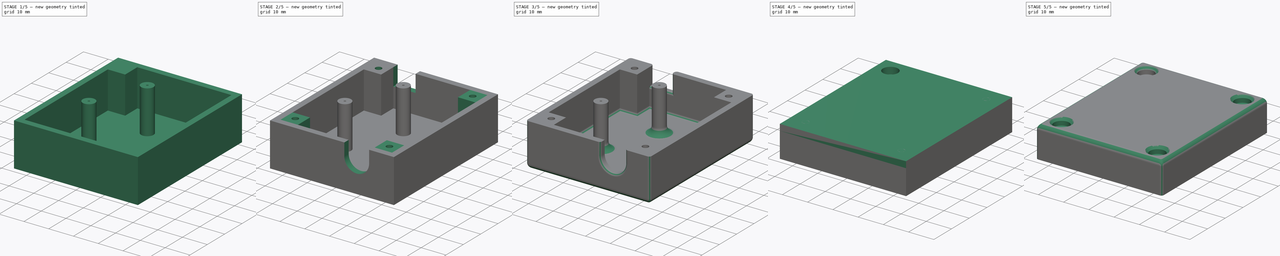
[diagram: build sequence overview — one tinted view per stage of 5, left to right]
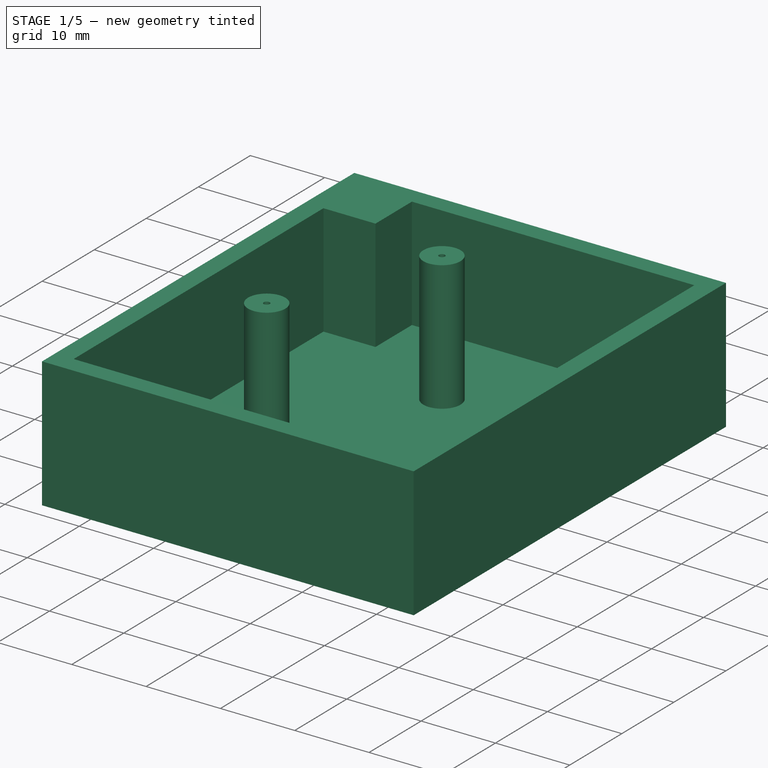
[diagram: stage 1 of 5 — iso view after this stage's code; geometry added in this stage tinted green]
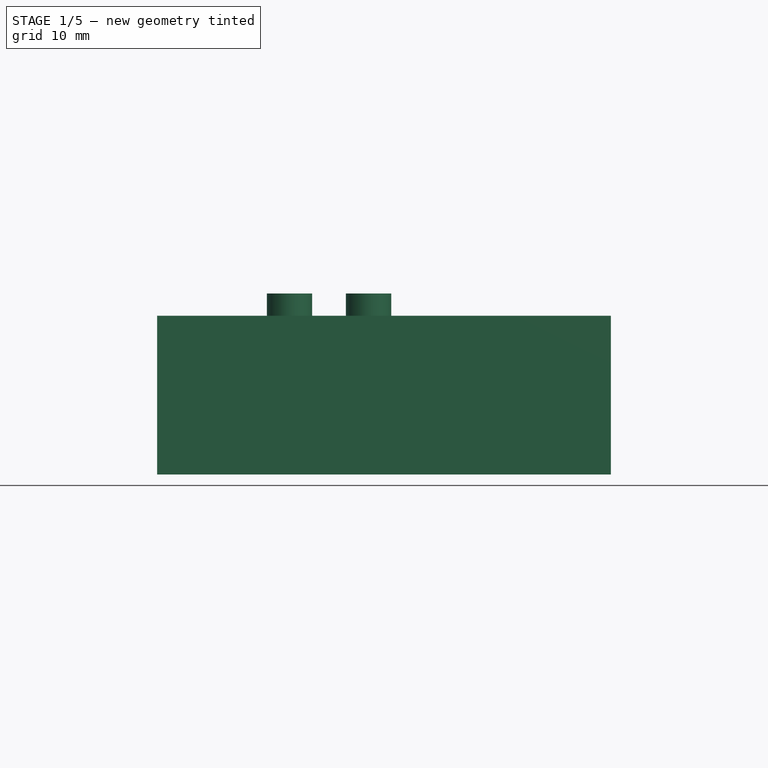
[diagram: stage 1 of 5 — front view after this stage's code; geometry added in this stage tinted green]
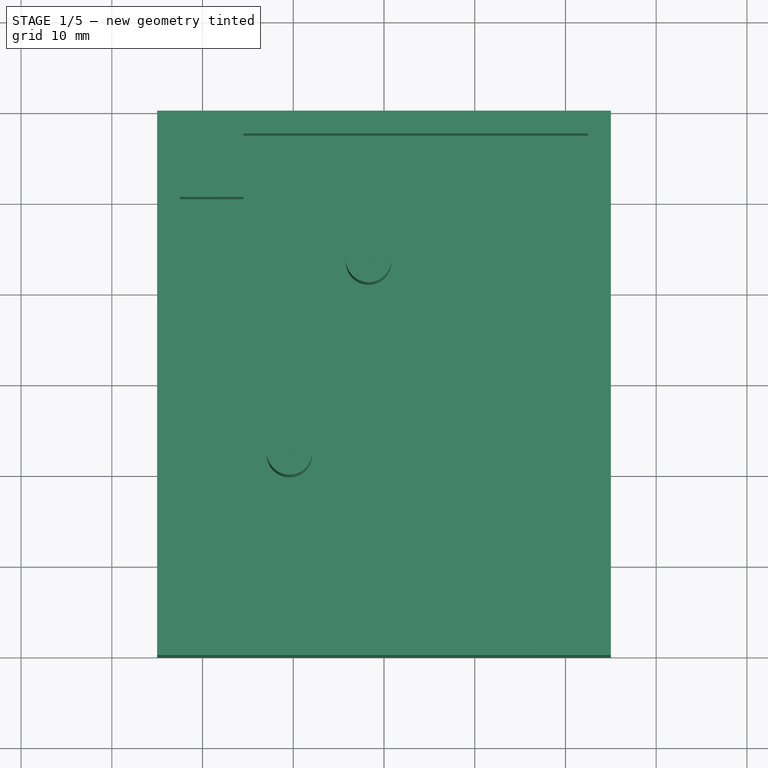
[diagram: stage 1 of 5 — top view after this stage's code; geometry added in this stage tinted green]
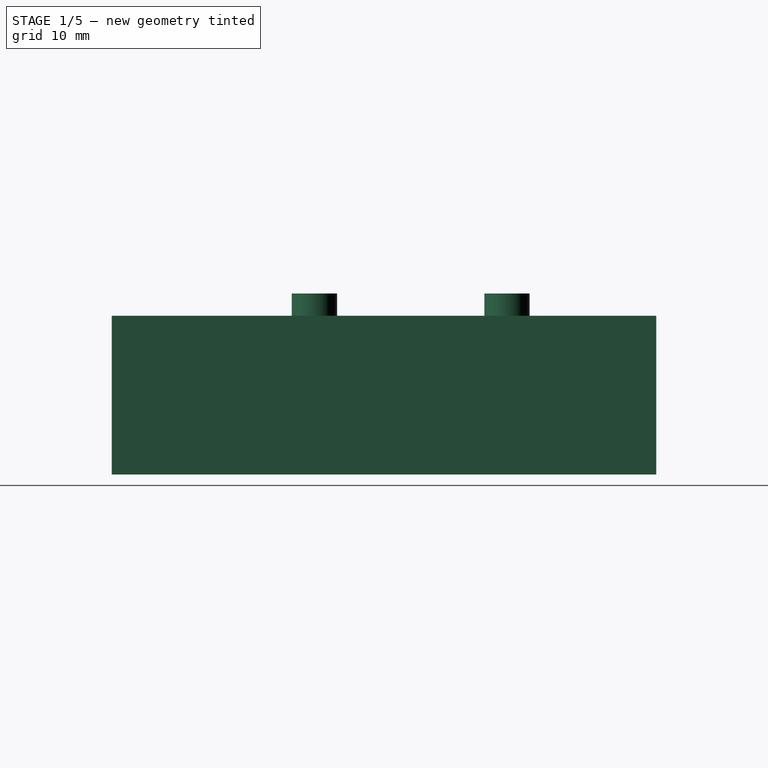
[diagram: stage 1 of 5 — right view after this stage's code; geometry added in this stage tinted green]
FCSTD DOCUMENT  (FreeCAD 0.21R33668 +26 (Git))
Label: controller-wires-junction-box
License: All rights reserved
LicenseURL: http://en.wikipedia.org/wiki/All_rights_reserved
objects: Sketcher::SketchObject×12, PartDesign::Fillet×9, PartDesign::Mirrored×8, PartDesign::Pad×6, PartDesign::Pocket×6, PartDesign::MultiTransform×4, PartDesign::Body×3, PartDesign::SubShapeBinder×2, PartDesign::Chamfer×2, Image::ImagePlane×1, Spreadsheet::Sheet×1, PartDesign::Thickness×1
note: 77 computed .brp shape members not serialized (recipe doc carries the construction recipe); baked Part::Feature solids carry a one-line shape summary decoded from their .brp

FEATURE [Image::ImagePlane] junction_pcb  label="junction-pcb"
  Placement = pos=(-2.09511,-4.40119,0) rot=(0,0,-1;6.2797rad)
  XSize = 35.0167
  YSize = 37.6013
FEATURE [Sketcher::SketchObject] Sketch
  FullyConstrained = true
  MapMode = 5
  Support = -> [XY_Plane]
  expr: Constraints[11] = 3.8 + 1.27 / 2
  expr: Constraints[12] = 1.2 + 1.27 / 2
  expr: Constraints[14] = 1.31 + 1.27 / 2
  expr: Constraints[15] = 3.91 + 1.27 / 2
  sketch-geometry (7):
    g0: LineSegment StartX=-12.5 StartY=-8.85 StartZ=0 EndX=12.5 EndY=-8.85 EndZ=0
    g1: LineSegment StartX=12.5 StartY=-8.85 StartZ=0 EndX=12.5 EndY=8.85 EndZ=0
    g2: LineSegment StartX=12.5 StartY=8.85 StartZ=0 EndX=-12.5 EndY=8.85 EndZ=0
    g3: LineSegment StartX=-12.5 StartY=8.85 StartZ=0 EndX=-12.5 EndY=-8.85 EndZ=0
    g4: Circle CenterX=10.665 CenterY=-4.415 CenterZ=0 NormalX=0 NormalY=0 NormalZ=1 AngleXU=0 Radius=0.635
    g5: Circle CenterX=-10.555 CenterY=4.305 CenterZ=0 NormalX=0 NormalY=0 NormalZ=1 AngleXU=0 Radius=0.635
    g6: Circle CenterX=10.665 CenterY=0 CenterZ=0 NormalX=0 NormalY=0 NormalZ=1 AngleXU=0 Radius=0.635
  constraints (19):
    c: Coincident(g0,g1)
    c: Coincident(g1,g2)
    c: Coincident(g2,g3)
    c: Coincident(g3,g0)
    c: Horizontal(g0)
    c: Vertical(g1)
    c: DistanceX(g2,g2) = 25
    c: Symmetric(g1,g2,g-2)
    c: DistanceY(g3,g3) = 17.7
    c: Symmetric(g2,g0,g-1)
    c: Diameter(g4) = 1.27
    c: DistanceY(g0,g4) = 4.435
    c: DistanceX(g4,g0) = 1.835
    c: Diameter(g5) = 1.27
    c: DistanceX(g2,g5) = 1.945
    c: DistanceY(g5,g2) = 4.545
    c: Vertical(g6,g4)
    c: PointOnObject(g6,g-1)
    c: Diameter(g6) = 1.27
FEATURE [PartDesign::Pad] Pad
  Direction = (0,0,1)
  Length = 1.55
  Length2 = 10
  Profile = -> Sketch
  ReferenceAxis = -> Sketch [N_Axis]
  Type = 0
FEATURE [PartDesign::Body] Body  label="Body_PCB"
  Group = -> [Sketch,Pad]
  Origin = -> Origin
  Placement = pos=(-6,3,20) rot=(0,0,-1;1.5708rad)
  Tip = -> Pad
FEATURE [Sketcher::SketchObject] Sketch001
  FullyConstrained = true
  MapMode = 5
  Support = -> [XY_Plane001]
  expr: Constraints[6] = <<Values>>.X_Width
  expr: Constraints[7] = <<Values>>.Y_Height
  sketch-geometry (4):
    g0: LineSegment StartX=-25 StartY=30 StartZ=0 EndX=25 EndY=30 EndZ=0
    g1: LineSegment StartX=25 StartY=30 StartZ=0 EndX=25 EndY=-30 EndZ=0
    g2: LineSegment StartX=25 StartY=-30 StartZ=0 EndX=-25 EndY=-30 EndZ=0
    g3: LineSegment StartX=-25 StartY=-30 StartZ=0 EndX=-25 EndY=30 EndZ=0
  constraints (10):
    c: Coincident(g0,g1)
    c: Coincident(g1,g2)
    c: Coincident(g2,g3)
    c: Coincident(g3,g0)
    c: Horizontal(g2)
    c: Vertical(g1)
    c: DistanceX(g0,g0) = 50
    c: DistanceY(g3,g3) = 60
    c: Symmetric(g0,g0,g-2)
    c: Symmetric(g2,g0,g-1)
FEATURE [Spreadsheet::Sheet] Spreadsheet  label="Values"
  cells = A2='X Width; B2(X_Width)=50; A3='Y Height; B3(Y_Height)=60; A4='Z Depth; B4(Z_Depth)=17.5; A6='Wall Size; B6(Wall_Size)=2.5; A8='X Inner Width; B8(X_Inner_Width)==X_Width - 2 * Wall_Size; A9='Y Inner Height; B9(Y_Inner_Height)==Y_Height - 2 * Wall_Size; A10='Z Inner Depth; B10(Z_Inner_Depth)==Z_Depth - 2 * Wall_Size; A12='PCB Mount Screw Thread Length; B12(PCB_Mount_Screw_Thread_Length)=18; A13='PCB Z Depth; B13(PCB_Z_Depth)=1.55; A14='PCB Mount Posts Z Depth; B14(PCB_Mount_Posts_Z_Depth)==PCB_Mount_Screw_Thread_Length - PCB_Z_Depth + 1
FEATURE [PartDesign::Pad] Pad001  label="Pad_Box"
  Direction = (0,0,1)
  Length = 17.5
  Length2 = 10
  Profile = -> Sketch001
  ReferenceAxis = -> Sketch001 [N_Axis]
  Type = 0
  expr: Length = <<Values>>.Z_Depth
FEATURE [PartDesign::Thickness] Thickness  label="Thickness_Inner"
  Base = -> Pad001 [Face6]
  BaseFeature = -> Pad001
  Intersection = false
  Join = 0
  Mode = 0
  Reversed = true
  SupportTransform = false
  Value = 2.5
  expr: Value = <<Values>>.Wall_Size
FEATURE [PartDesign::SubShapeBinder] Binder
  BindCopyOnChange = 0
  BindMode = 0
  ClaimChildren = false
  Context = -> Body001 [Binder.]
  Fuse = false
  MakeFace = true
  OffsetFill = false
  OffsetIntersection = false
  OffsetJoinType = 0
  OffsetOpenResult = false
  PartialLoad = false
  Relative = true
  Support = -> [Body[Pad.Edge21,Pad.Edge18]]
  _Version = 2
FEATURE [Sketcher::SketchObject] Sketch002
  ExternalGeometry = -> [Binder]
  FullyConstrained = true
  MapMode = 5
  Placement = pos=(0,0,2.5) rot=(0,0,1;0rad)
  Support = -> [Thickness]
  sketch-geometry (2):
    g0: Circle CenterX=-10.415 CenterY=-7.665 CenterZ=0 NormalX=0 NormalY=0 NormalZ=1 AngleXU=0 Radius=2.5
    g1: Circle CenterX=-1.695 CenterY=13.555 CenterZ=0 NormalX=0 NormalY=0 NormalZ=1 AngleXU=0 Radius=2.5
  constraints (4):
    c: Coincident(g0,g-3)
    c: Diameter(g0) = 5
    c: Coincident(g1,g-4)
    c: Equal(g1,g0)
FEATURE [PartDesign::Pad] Pad002  label="Pad_PCB_Mount_Holes"
  BaseFeature = -> Thickness
  Direction = (0,0,1)
  Length = 17.45
  Length2 = 10
  Profile = -> Sketch002
  ReferenceAxis = -> Sketch002 [N_Axis]
  Type = 0
  expr: Length = <<Values>>.PCB_Mount_Posts_Z_Depth
FEATURE [Sketcher::SketchObject] Sketch003
  ExternalGeometry = -> [Binder]
  FullyConstrained = true
  MapMode = 5
  Placement = pos=(0,0,19.95) rot=(0,0,1;0rad)
  Support = -> [Pad002]
  sketch-geometry (2):
    g0: Circle CenterX=-10.415 CenterY=-7.665 CenterZ=0 NormalX=0 NormalY=0 NormalZ=1 AngleXU=0 Radius=0.4
    g1: Circle CenterX=-1.695 CenterY=13.555 CenterZ=0 NormalX=0 NormalY=0 NormalZ=1 AngleXU=0 Radius=0.4
  constraints (4):
    c: Coincident(g0,g-3)
    c: Diameter(g0) = 0.8
    c: Coincident(g1,g-4)
    c: Equal(g1,g0)
FEATURE [PartDesign::Pocket] Pocket  label="Pocket_PCB_Screw_Holes"
  BaseFeature = -> Pad002
  Direction = (0,0,-1)
  Length = 1
  Length2 = 5
  Profile = -> Sketch003
  ReferenceAxis = -> Sketch003 [N_Axis]
  Type = 0
FEATURE [Sketcher::SketchObject] Sketch004
  ExternalGeometry = -> [Pocket]
  FullyConstrained = true
  MapMode = 5
  Placement = pos=(0,0,2.5) rot=(0,0,1;0rad)
  Support = -> [Pocket]
  sketch-geometry (4):
    g0: LineSegment StartX=-22.5 StartY=27.5 StartZ=0 EndX=-15.5 EndY=27.5 EndZ=0
    g1: LineSegment StartX=-15.5 StartY=27.5 StartZ=0 EndX=-15.5 EndY=20.5 EndZ=0
    g2: LineSegment StartX=-15.5 StartY=20.5 StartZ=0 EndX=-22.5 EndY=20.5 EndZ=0
    g3: LineSegment StartX=-22.5 StartY=20.5 StartZ=0 EndX=-22.5 EndY=27.5 EndZ=0
  constraints (11):
    c: Coincident(g0,g1)
    c: Coincident(g1,g2)
    c: Coincident(g2,g3)
    c: Coincident(g3,g0)
    c: Horizontal(g0)
    c: Horizontal(g2)
    c: Vertical(g1)
    c: Vertical(g3)
    c: Coincident(g0,g-4)
    c: Equal(g1,g2)
    c: DistanceX(g2,g2) = 7
FEATURE [PartDesign::Pad] Pad003
  BaseFeature = -> Pocket
  Direction = (0,0,1)
  Length = 15
  Length2 = 10
  Profile = -> Sketch004
  ReferenceAxis = -> Sketch004 [N_Axis]
  Type = 0
  expr: Length = <<Values>>.Z_Depth - <<Values>>.Wall_Size
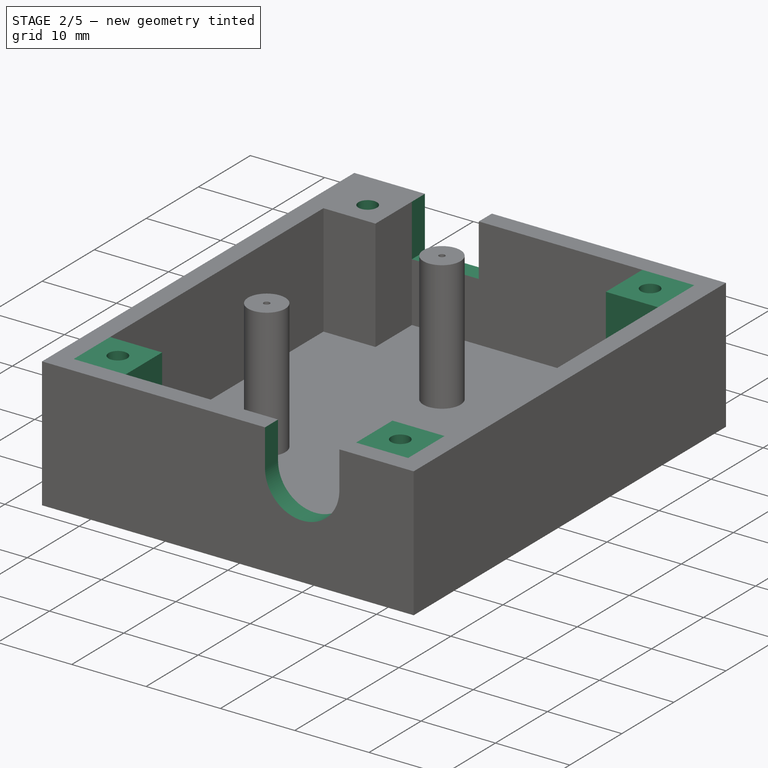
[diagram: stage 2 of 5 — iso view after this stage's code; geometry added in this stage tinted green]
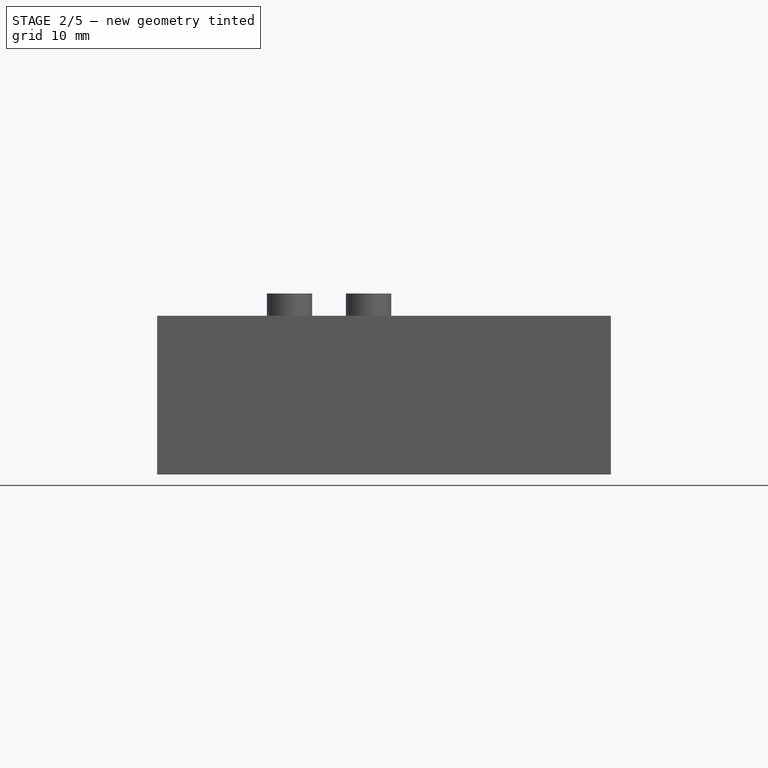
[diagram: stage 2 of 5 — front view after this stage's code; geometry added in this stage tinted green]
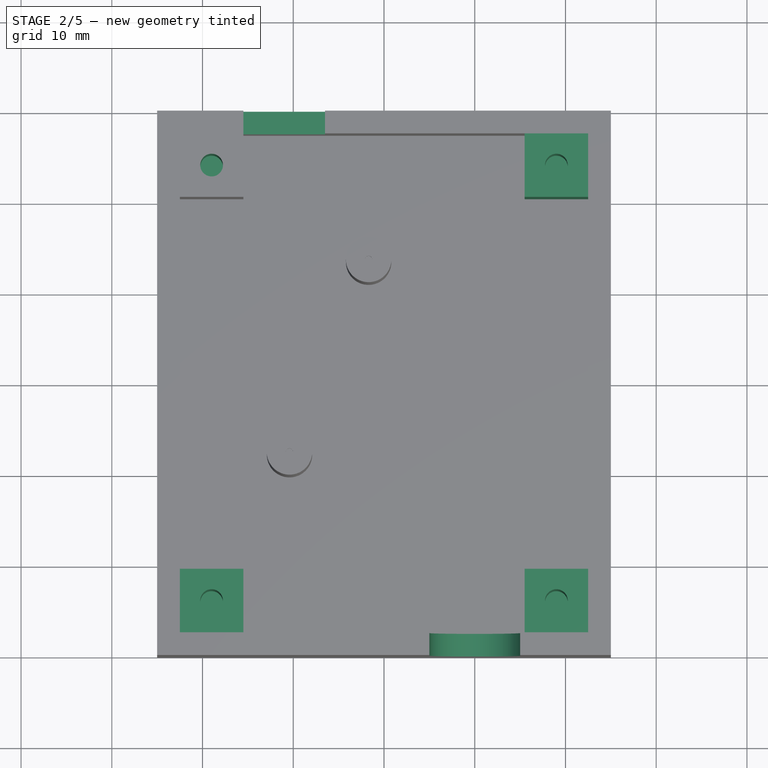
[diagram: stage 2 of 5 — top view after this stage's code; geometry added in this stage tinted green]
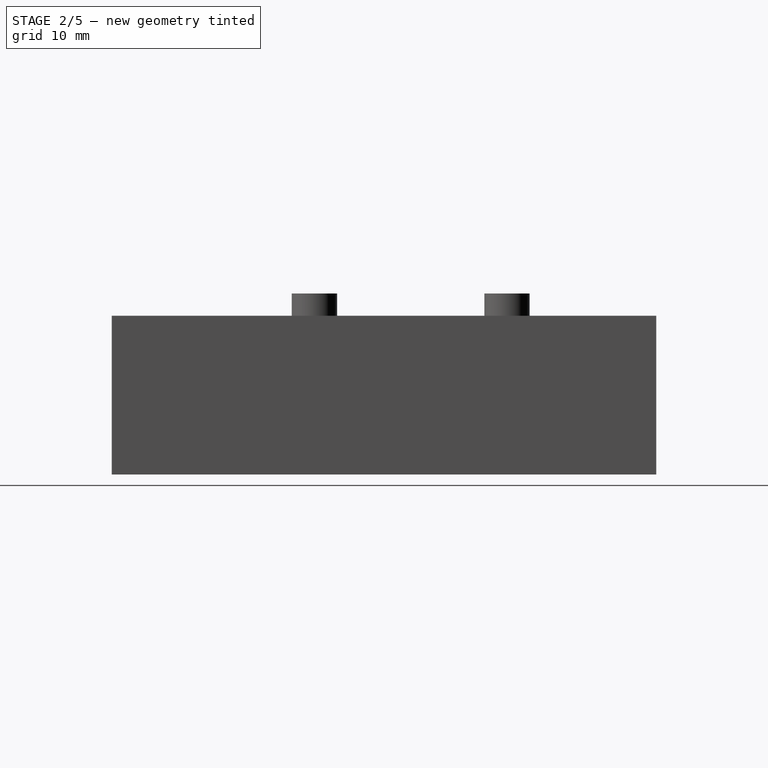
[diagram: stage 2 of 5 — right view after this stage's code; geometry added in this stage tinted green]
FEATURE [PartDesign::Mirrored] Mirrored
  MirrorPlane = -> Sketch004 [V_Axis]
FEATURE [PartDesign::Mirrored] Mirrored001
  MirrorPlane = -> Sketch004 [H_Axis]
FEATURE [PartDesign::MultiTransform] MultiTransform
  BaseFeature = -> Pad003
  Originals = -> [Pad003]
  Transformations = -> [Mirrored,Mirrored001]
FEATURE [Sketcher::SketchObject] Sketch005
  ExternalGeometry = -> [MultiTransform]
  FullyConstrained = true
  MapMode = 5
  Placement = pos=(0,0,17.5) rot=(0,0,1;0rad)
  Support = -> [MultiTransform]
  sketch-geometry (3):
    g0: LineSegment StartX=-22.5 StartY=24 StartZ=0 EndX=-15.5 EndY=24 EndZ=0
    g1: LineSegment StartX=-19 StartY=27.5 StartZ=0 EndX=-19 EndY=20.5 EndZ=0
    g2: Circle CenterX=-19 CenterY=24 CenterZ=0 NormalX=0 NormalY=0 NormalZ=1 AngleXU=0 Radius=1.25
  constraints (9):
    c: Horizontal(g0)
    c: Symmetric(g-4,g-6,g0)
    c: Equal(g0,g-6)
    c: Vertical(g1)
    c: Symmetric(g-5,g-4,g1)
    c: Equal(g1,g0)
    c: PointOnObject(g2,g0)
    c: PointOnObject(g2,g1)
    c: Diameter(g2) = 2.5
FEATURE [PartDesign::Pocket] Pocket001
  BaseFeature = -> MultiTransform
  Direction = (0,0,-1)
  Length = 12.5
  Length2 = 5
  Profile = -> Sketch005
  ReferenceAxis = -> Sketch005 [N_Axis]
  Type = 0
  expr: Length = <<Values>>.Z_Inner_Depth
FEATURE [PartDesign::Mirrored] Mirrored002
  MirrorPlane = -> Sketch005 [V_Axis]
FEATURE [PartDesign::Mirrored] Mirrored003
  MirrorPlane = -> Sketch005 [H_Axis]
FEATURE [PartDesign::MultiTransform] MultiTransform001
  BaseFeature = -> Pocket001
  Originals = -> [Pocket001]
  Transformations = -> [Mirrored002,Mirrored003]
FEATURE [Sketcher::SketchObject] Sketch006
  ExternalGeometry = -> [MultiTransform001]
  FullyConstrained = true
  MapMode = 5
  Placement = pos=(0,-30,0) rot=(1,0,0;1.5708rad)
  Support = -> [MultiTransform001]
  expr: Constraints[8] = <<Values>>.Wall_Size + 10
  sketch-geometry (4):
    g0: ArcOfCircle CenterX=10 CenterY=17.5 CenterZ=0 NormalX=0 NormalY=0 NormalZ=1 AngleXU=0 Radius=5 StartAngle=0 EndAngle=3.14159
    g1: ArcOfCircle CenterX=10 CenterY=12.5 CenterZ=0 NormalX=0 NormalY=0 NormalZ=1 AngleXU=0 Radius=5 StartAngle=3.14159 EndAngle=6.28319
    g2: LineSegment StartX=5 StartY=17.5 StartZ=0 EndX=5 EndY=12.5 EndZ=0
    g3: LineSegment StartX=15 StartY=12.5 StartZ=0 EndX=15 EndY=17.5 EndZ=0
  constraints (10):
    c: Tangent(g0,g2) = -1.5708
    c: Tangent(g2,g1) = -1.5708
    c: Tangent(g1,g3) = -1.5708
    c: Tangent(g3,g0) = -1.5708
    c: Equal(g0,g1)
    c: Vertical(g2)
    c: Diameter(g1) = 10
    c: DistanceX(g-1,g1) = 10
    c: DistanceY(g-1,g1) = 12.5
    c: PointOnObject(g0,g-3)
FEATURE [PartDesign::Pocket] Pocket002
  BaseFeature = -> MultiTransform001
  Direction = (0,1,-2e-16)
  Length = 2.5
  Length2 = 5
  Profile = -> Sketch006
  ReferenceAxis = -> Sketch006 [N_Axis]
  Type = 0
  expr: Length = <<Values>>.Wall_Size
FEATURE [Sketcher::SketchObject] Sketch007
  ExternalGeometry = -> [Pocket002]
  FullyConstrained = true
  MapMode = 5
  Placement = pos=(0,30,0) rot=(0,0.707107,0.707107;3.14159rad)
  Support = -> [Pocket002]
  sketch-geometry (4):
    g0: LineSegment StartX=6.5 StartY=17.5 StartZ=0 EndX=15.5 EndY=17.5 EndZ=0
    g1: LineSegment StartX=15.5 StartY=17.5 StartZ=0 EndX=15.5 EndY=10.5 EndZ=0
    g2: LineSegment StartX=15.5 StartY=10.5 StartZ=0 EndX=6.5 EndY=10.5 EndZ=0
    g3: LineSegment StartX=6.5 StartY=10.5 StartZ=0 EndX=6.5 EndY=17.5 EndZ=0
  constraints (12):
    c: Coincident(g0,g1)
    c: Coincident(g1,g2)
    c: Coincident(g2,g3)
    c: Coincident(g3,g0)
    c: Horizontal(g0)
    c: Horizontal(g2)
    c: Vertical(g1)
    c: Vertical(g3)
    c: DistanceX(g0,g0) = 9
    c: DistanceY(g3,g3) = 7
    c: PointOnObject(g0,g-3)
    c: DistanceX(g0,g-4) = 0
FEATURE [PartDesign::Pocket] Pocket003
  BaseFeature = -> Pocket002
  Direction = (0,-1,2e-16)
  Length = 2.5
  Length2 = 5
  Profile = -> Sketch007
  ReferenceAxis = -> Sketch007 [N_Axis]
  Type = 0
  expr: Length = <<Values>>.Wall_Size
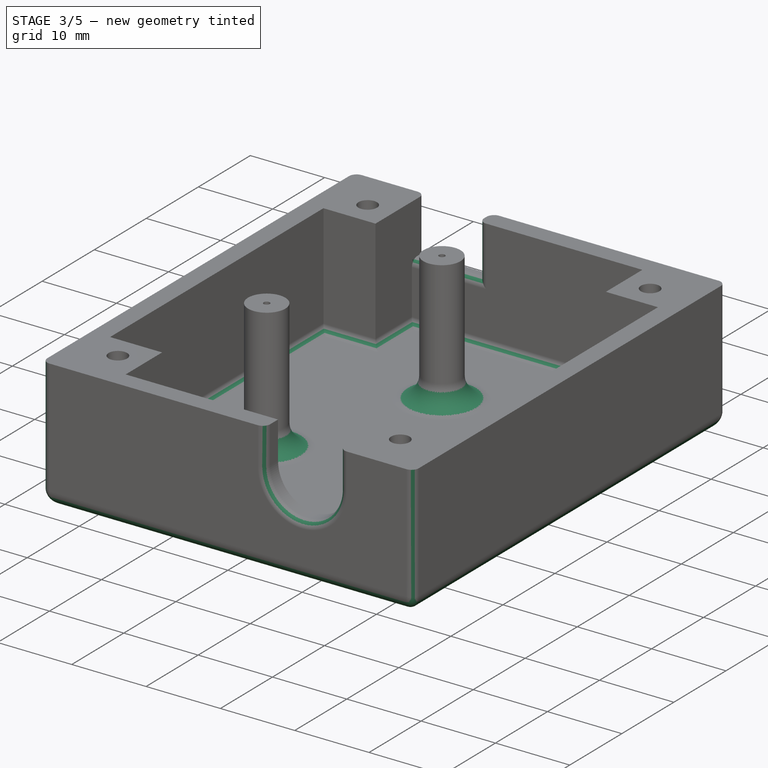
[diagram: stage 3 of 5 — iso view after this stage's code; geometry added in this stage tinted green]
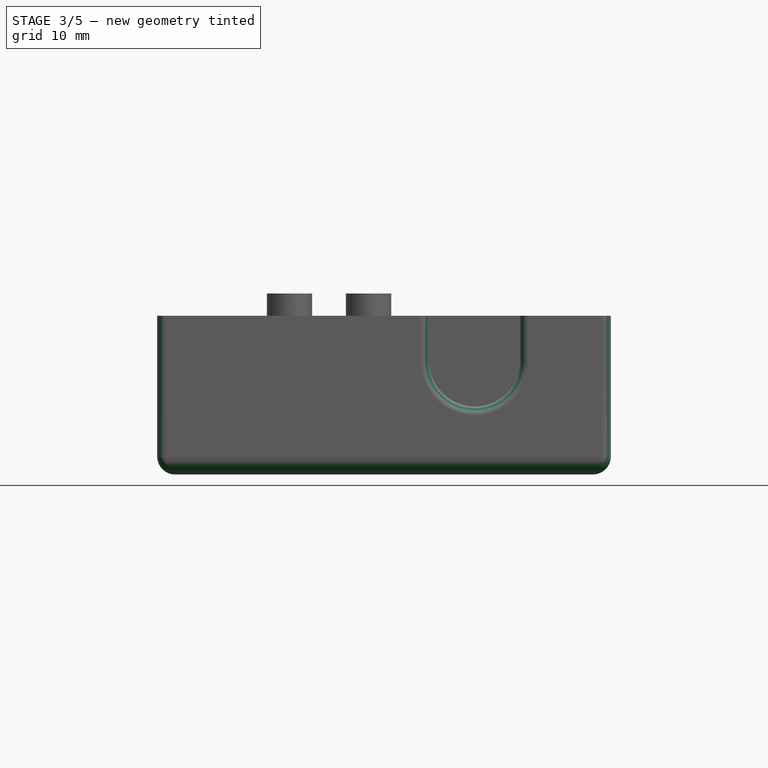
[diagram: stage 3 of 5 — front view after this stage's code; geometry added in this stage tinted green]
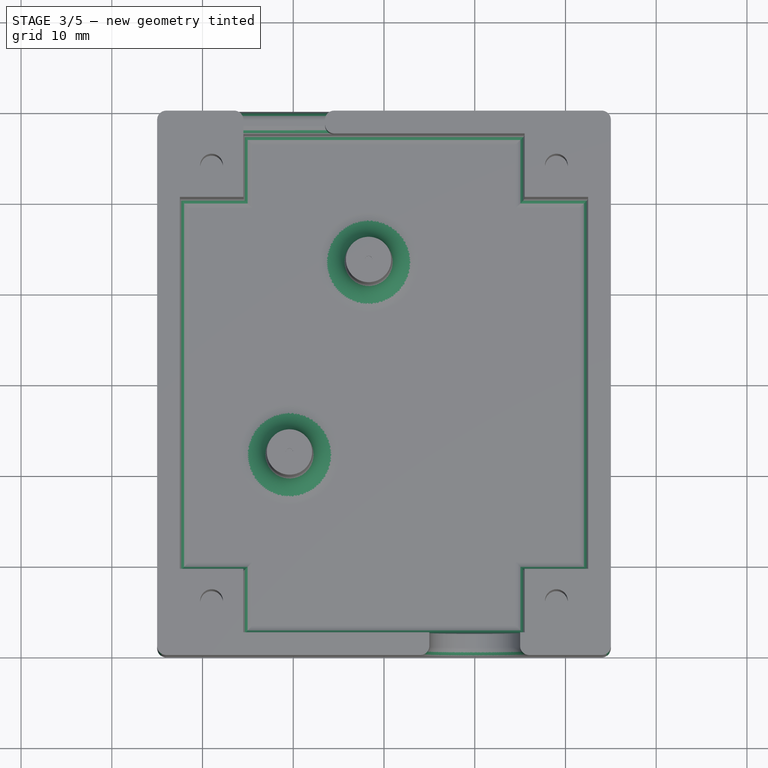
[diagram: stage 3 of 5 — top view after this stage's code; geometry added in this stage tinted green]
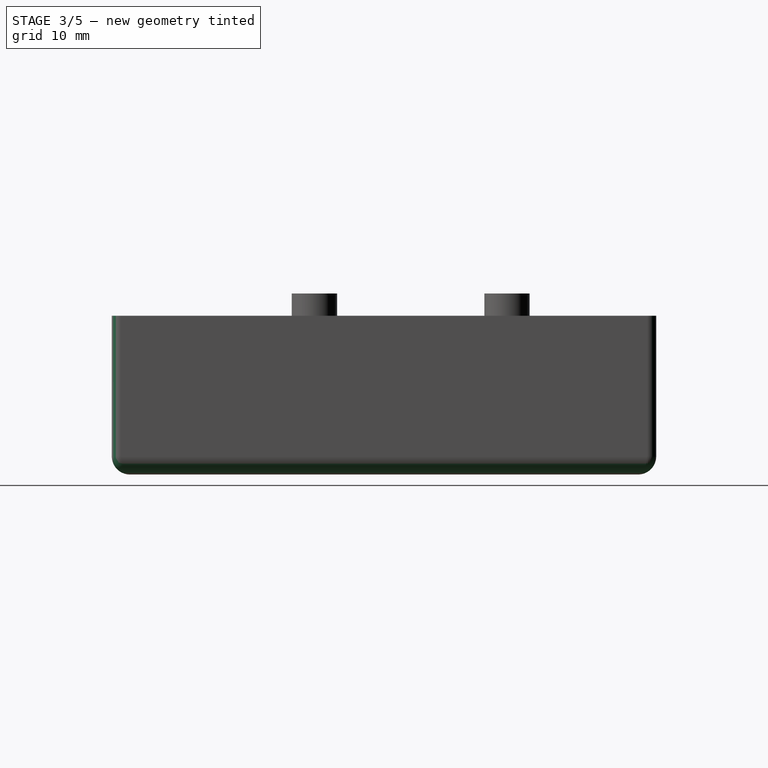
[diagram: stage 3 of 5 — right view after this stage's code; geometry added in this stage tinted green]
FEATURE [PartDesign::Fillet] Fillet
  Base = -> Pocket003 [Edge81,Edge82]
  BaseFeature = -> Pocket003
  Radius = 3
  SupportTransform = false
  UseAllEdges = false
FEATURE [PartDesign::Fillet] Fillet001
  Base = -> Fillet [Edge98,Edge92,Edge91,Edge87]
  BaseFeature = -> Fillet
  Radius = 2
  SupportTransform = false
  UseAllEdges = false
FEATURE [PartDesign::Fillet] Fillet002
  Base = -> Fillet001 [Edge25,Edge11,Edge1,Edge4]
  BaseFeature = -> Fillet001
  Radius = 1
  SupportTransform = false
  UseAllEdges = false
FEATURE [PartDesign::Fillet] Fillet003
  Base = -> Fillet002 [Edge8,Edge6,Edge7,Edge44,Edge45]
  BaseFeature = -> Fillet002
  Radius = 1
  SupportTransform = false
  UseAllEdges = false
FEATURE [PartDesign::Fillet] Fillet004
  Base = -> Fillet003 [Edge64,Edge63,Edge62]
  BaseFeature = -> Fillet003
  Radius = 1
  SupportTransform = false
  UseAllEdges = false
FEATURE [PartDesign::Fillet] Fillet005
  Base = -> Fillet004 [Edge92,Edge93,Edge94,Edge95,Edge97,Edge96,Edge90,Edge89,Edge88,Edge91,Edge31,Edge51]
  BaseFeature = -> Fillet004
  Radius = 1
  SupportTransform = false
  UseAllEdges = false
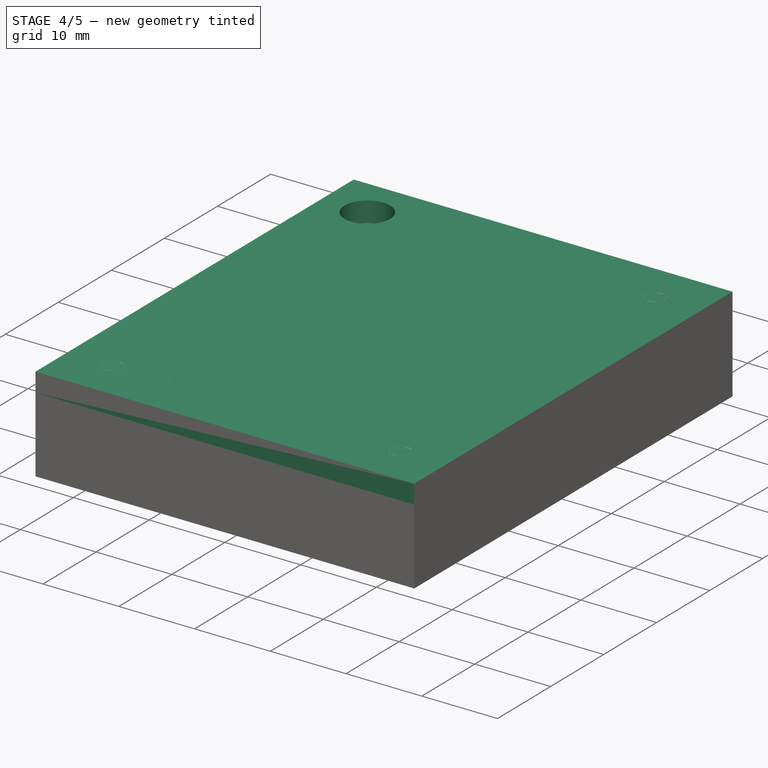
[diagram: stage 4 of 5 — iso view after this stage's code; geometry added in this stage tinted green]
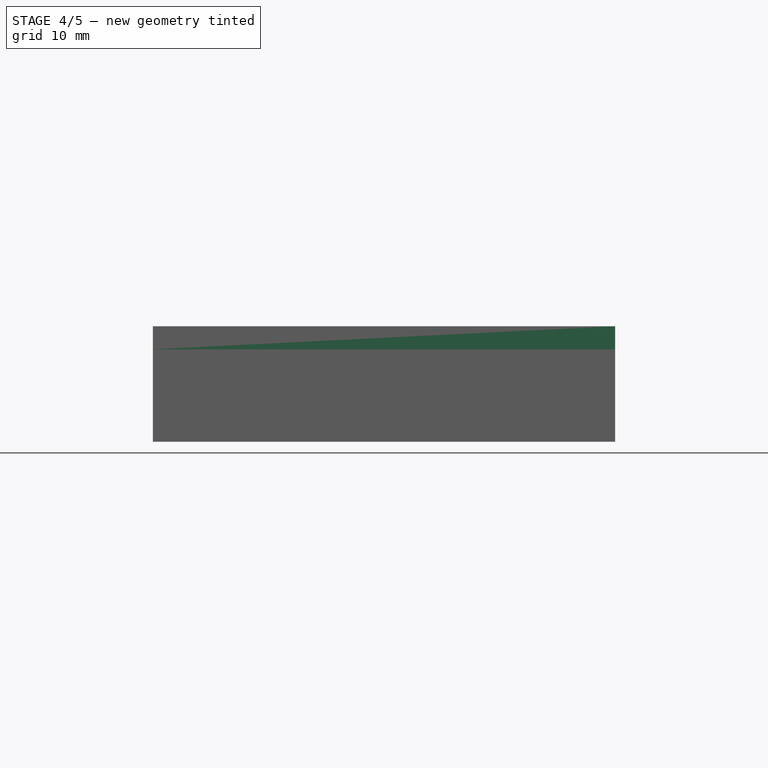
[diagram: stage 4 of 5 — front view after this stage's code; geometry added in this stage tinted green]
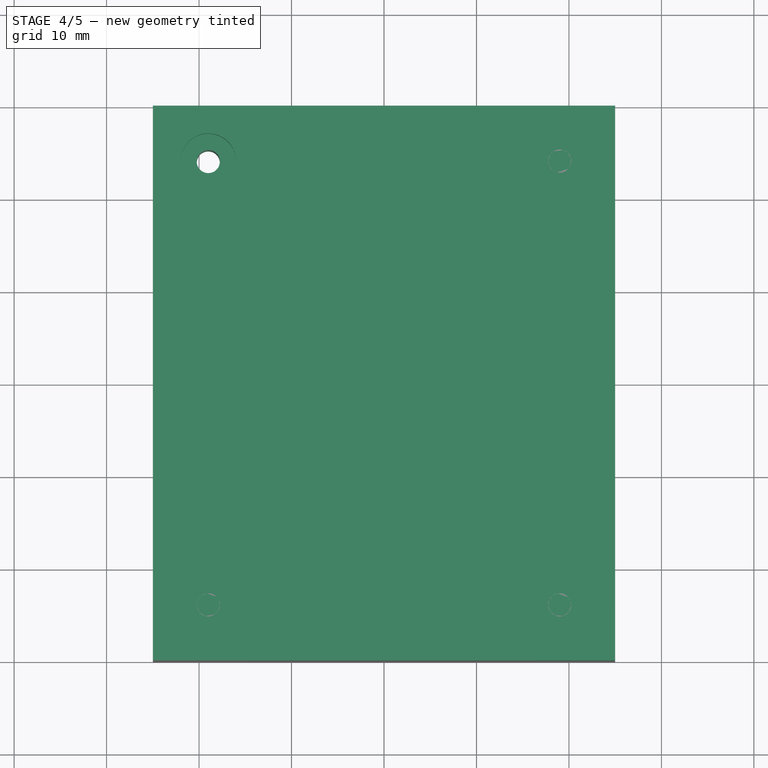
[diagram: stage 4 of 5 — top view after this stage's code; geometry added in this stage tinted green]
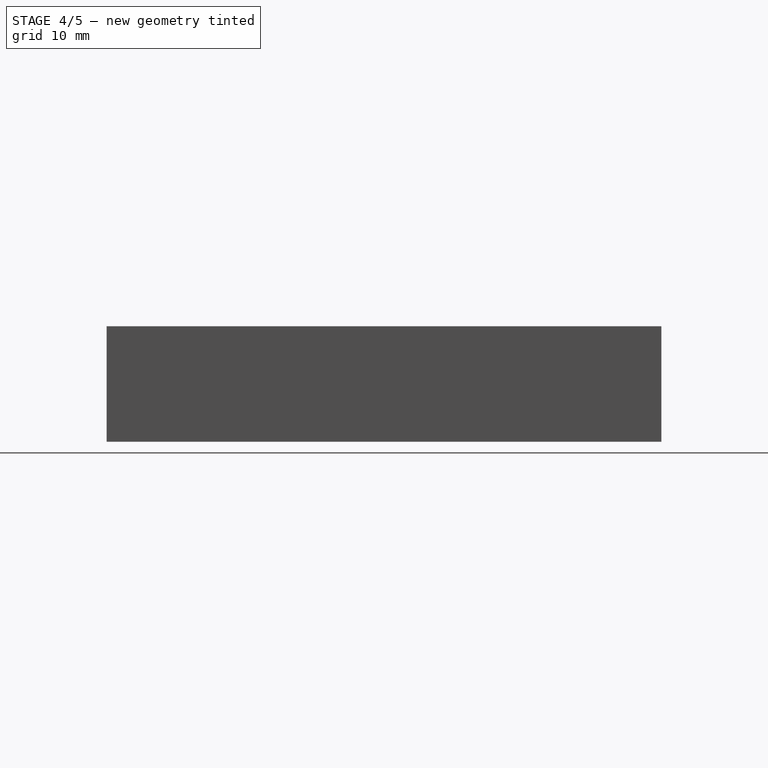
[diagram: stage 4 of 5 — right view after this stage's code; geometry added in this stage tinted green]
FEATURE [PartDesign::SubShapeBinder] Binder001
  BindCopyOnChange = 0
  BindMode = 0
  ClaimChildren = false
  Context = -> Body002 [Binder001.]
  Fuse = false
  MakeFace = true
  OffsetFill = false
  OffsetIntersection = false
  OffsetJoinType = 0
  OffsetOpenResult = false
  PartialLoad = false
  Relative = true
  Support = -> [Body001[Pocket003.Edge7,Pocket003.Edge38,Pocket003.Edge37,Pocket003.Edge32,Pocket003.Edge33,Pocket003.Edge34,Pocket003.Edge70,Pocket003.Edge71]]
  _Version = 2
FEATURE [Sketcher::SketchObject] Sketch008
  ExternalGeometry = -> [Binder001]
  FullyConstrained = true
  MapMode = 5
  Support = -> [XY_Plane002]
  sketch-geometry (16):
    g0: LineSegment StartX=-25 StartY=30 StartZ=0 EndX=25 EndY=30 EndZ=0
    g1: LineSegment StartX=25 StartY=30 StartZ=0 EndX=25 EndY=-30 EndZ=0
    g2: LineSegment StartX=25 StartY=-30 StartZ=0 EndX=-25 EndY=-30 EndZ=0
    g3: LineSegment StartX=-25 StartY=-30 StartZ=0 EndX=-25 EndY=30 EndZ=0
    g4: LineSegment StartX=-15.5 StartY=27.5 StartZ=0 EndX=15.5 EndY=27.5 EndZ=0
    g5: LineSegment StartX=22.5 StartY=20.5 StartZ=0 EndX=22.5 EndY=-20.5 EndZ=0
    g6: LineSegment StartX=15.5 StartY=-27.5 StartZ=0 EndX=-15.5 EndY=-27.5 EndZ=0
    g7: LineSegment StartX=-22.5 StartY=-20.5 StartZ=0 EndX=-22.5 EndY=20.5 EndZ=0
    g8: LineSegment StartX=-22.5 StartY=20.5 StartZ=0 EndX=-15.5 EndY=20.5 EndZ=0
    g9: LineSegment StartX=-15.5 StartY=27.5 StartZ=0 EndX=-15.5 EndY=20.5 EndZ=0
    g10: LineSegment StartX=15.5 StartY=27.5 StartZ=0 EndX=15.5 EndY=20.5 EndZ=0
    g11: LineSegment StartX=15.5 StartY=20.5 StartZ=0 EndX=22.5 EndY=20.5 EndZ=0
    g12: LineSegment StartX=-22.5 StartY=-20.5 StartZ=0 EndX=-15.5 EndY=-20.5 EndZ=0
    g13: LineSegment StartX=-15.5 StartY=-20.5 StartZ=0 EndX=-15.5 EndY=-27.5 EndZ=0
    g14: LineSegment StartX=22.5 StartY=-20.5 StartZ=0 EndX=15.5 EndY=-20.5 EndZ=0
    g15: LineSegment StartX=15.5 StartY=-27.5 StartZ=0 EndX=15.5 EndY=-20.5 EndZ=0
  constraints (38):
    c: Coincident(g0,g1)
    c: Coincident(g1,g2)
    c: Coincident(g2,g3)
    c: Coincident(g3,g0)
    c: Horizontal(g0)
    c: Horizontal(g2)
    c: Vertical(g1)
    c: Vertical(g3)
    c: Coincident(g0,g-4)
    c: Coincident(g1,g-9)
    c: Horizontal(g4)
    c: Horizontal(g6)
    c: Vertical(g5)
    c: Vertical(g7)
    c: Coincident(g8,g-33)
    c: Coincident(g8,g-33)
    c: Coincident(g9,g-32)
    c: Coincident(g9,g8)
    c: Coincident(g10,g-35)
    c: Coincident(g10,g-35)
    c: Coincident(g11,g10)
    c: Coincident(g11,g-34)
    c: Coincident(g12,g-27)
    c: Coincident(g12,g-28)
    c: Coincident(g13,g12)
    c: Coincident(g13,g-28)
    c: Coincident(g14,g-19)
    c: Coincident(g14,g-21)
    c: Coincident(g15,g-21)
    c: Coincident(g15,g14)
    c: PointOnObject(g7,g8)
    c: PointOnObject(g4,g10)
    c: PointOnObject(g5,g11)
    c: PointOnObject(g6,g15)
    c: Coincident(g6,g13)
    c: Coincident(g7,g12)
    c: Coincident(g5,g14)
    c: Coincident(g4,g9)
FEATURE [PartDesign::Pad] Pad004
  Direction = (0,0,1)
  Length = 12.5
  Length2 = 10
  Profile = -> Sketch008
  ReferenceAxis = -> Sketch008 [N_Axis]
  Type = 0
  expr: Length = <<Values>>.Z_Inner_Depth
FEATURE [Sketcher::SketchObject] Sketch009
  ExternalGeometry = -> [Binder001]
  FullyConstrained = true
  MapMode = 5
  Placement = pos=(0,0,12.5) rot=(0,0,1;0rad)
  Support = -> [Pad004]
  sketch-geometry (1):
    g0: Circle CenterX=-19 CenterY=24 CenterZ=0 NormalX=0 NormalY=0 NormalZ=1 AngleXU=0 Radius=1.25
  constraints (2):
    c: Coincident(g0,g-3)
    c: Equal(g0,g-3)
FEATURE [PartDesign::Pocket] Pocket004
  BaseFeature = -> Pad004
  Direction = (0,0,-1)
  Length = 5
  Length2 = 5
  Profile = -> Sketch009
  ReferenceAxis = -> Sketch009 [N_Axis]
  Type = 1
FEATURE [PartDesign::Mirrored] Mirrored004
  MirrorPlane = -> Sketch009 [V_Axis]
FEATURE [PartDesign::Mirrored] Mirrored005
  MirrorPlane = -> Sketch009 [H_Axis]
FEATURE [PartDesign::MultiTransform] MultiTransform002
  BaseFeature = -> Pocket004
  Originals = -> [Pocket004]
  Transformations = -> [Mirrored004,Mirrored005]
FEATURE [PartDesign::Body] Body001  label="Body_Box"
  Group = -> [Sketch001,Pad001,Thickness,Binder,Sketch002,Pad002,Sketch003,Pocket,Sketch004,Pad003,MultiTransform,Mirrored,Mirrored001,Sketch005,Pocket001,MultiTransform001,Mirrored002,Mirrored003,Sketch006,Pocket002,Sketch007,Pocket003,Fillet,Fillet001,Fillet002,Fillet003,Fillet004,Fillet005]
  Origin = -> Origin001
  Tip = -> Fillet005
FEATURE [Sketcher::SketchObject] Sketch011
  ExternalGeometry = -> [MultiTransform002]
  FullyConstrained = true
  MapMode = 5
  Placement = pos=(0,0,12.5) rot=(0,0,1;0rad)
  Support = -> [MultiTransform002]
  sketch-geometry (4):
    g0: LineSegment StartX=-25 StartY=30 StartZ=0 EndX=25 EndY=30 EndZ=0
    g1: LineSegment StartX=25 StartY=30 StartZ=0 EndX=25 EndY=-30 EndZ=0
    g2: LineSegment StartX=25 StartY=-30 StartZ=0 EndX=-25 EndY=-30 EndZ=0
    g3: LineSegment StartX=-25 StartY=-30 StartZ=0 EndX=-25 EndY=30 EndZ=0
  constraints (10):
    c: Coincident(g0,g1)
    c: Coincident(g1,g2)
    c: Coincident(g2,g3)
    c: Coincident(g3,g0)
    c: Horizontal(g0)
    c: Horizontal(g2)
    c: Vertical(g1)
    c: Vertical(g3)
    c: Coincident(g0,g-4)
    c: Coincident(g1,g-6)
FEATURE [PartDesign::Pad] Pad005
  BaseFeature = -> MultiTransform002
  Direction = (0,0,1)
  Length = 2.5
  Length2 = 10
  Profile = -> Sketch011
  ReferenceAxis = -> Sketch011 [N_Axis]
  Reversed = true
  Type = 0
  expr: Length = <<Values>>.Wall_Size
FEATURE [Sketcher::SketchObject] Sketch012
  ExternalGeometry = -> [Pad005]
  FullyConstrained = true
  MapMode = 5
  Placement = pos=(0,0,12.5) rot=(0,0,1;0rad)
  Support = -> [Pad005]
  sketch-geometry (1):
    g0: Circle CenterX=-19 CenterY=24 CenterZ=0 NormalX=0 NormalY=0 NormalZ=1 AngleXU=0 Radius=3
  constraints (2):
    c: Coincident(g0,g-3)
    c: Diameter(g0) = 6
FEATURE [PartDesign::Pocket] Pocket005
  BaseFeature = -> Pad005
  Direction = (0,0,-1)
  Length = 2.7
  Length2 = 5
  Profile = -> Sketch012
  ReferenceAxis = -> Sketch012 [N_Axis]
  Type = 0
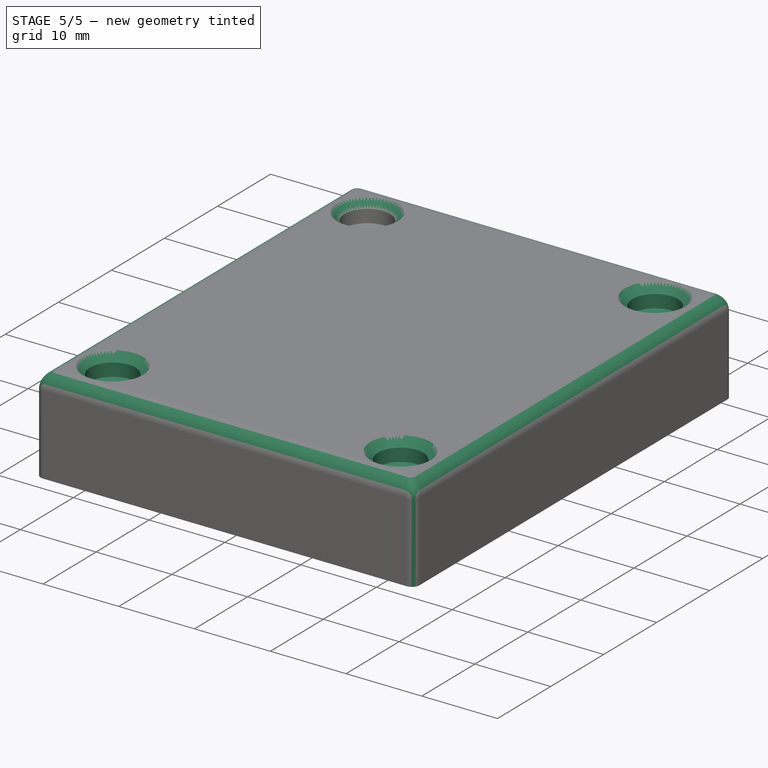
[diagram: stage 5 of 5 — iso view after this stage's code; geometry added in this stage tinted green]
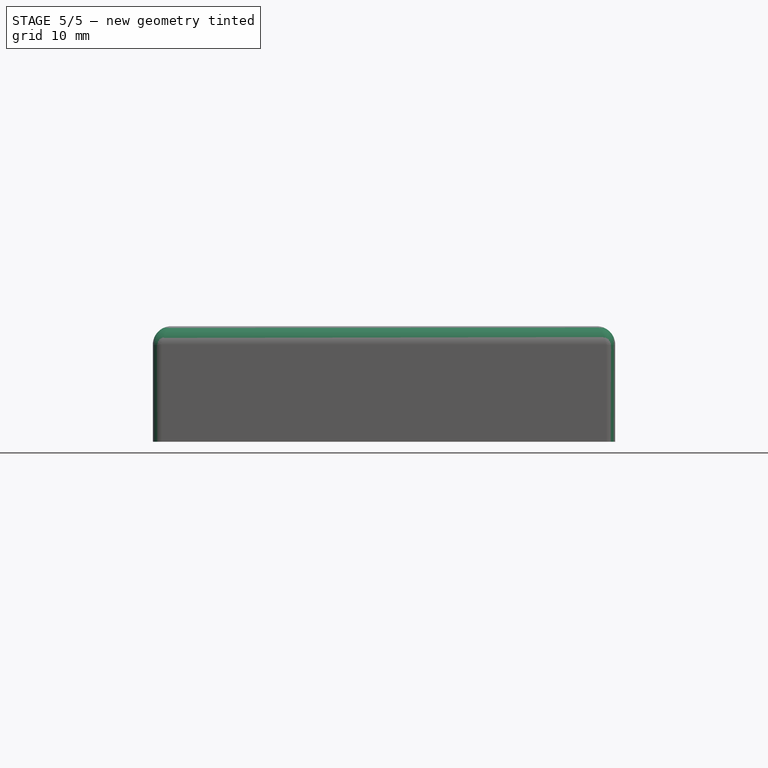
[diagram: stage 5 of 5 — front view after this stage's code; geometry added in this stage tinted green]
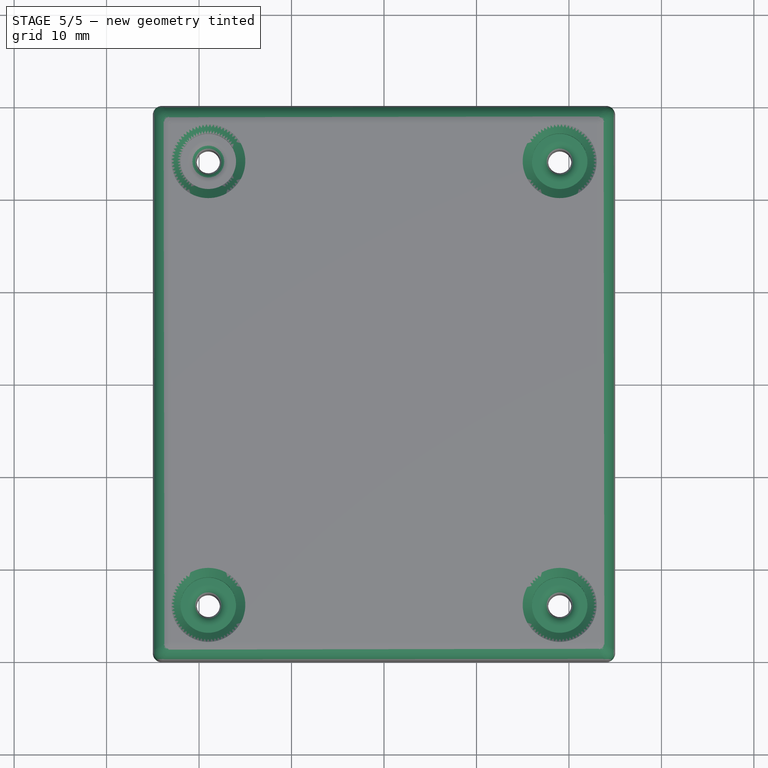
[diagram: stage 5 of 5 — top view after this stage's code; geometry added in this stage tinted green]
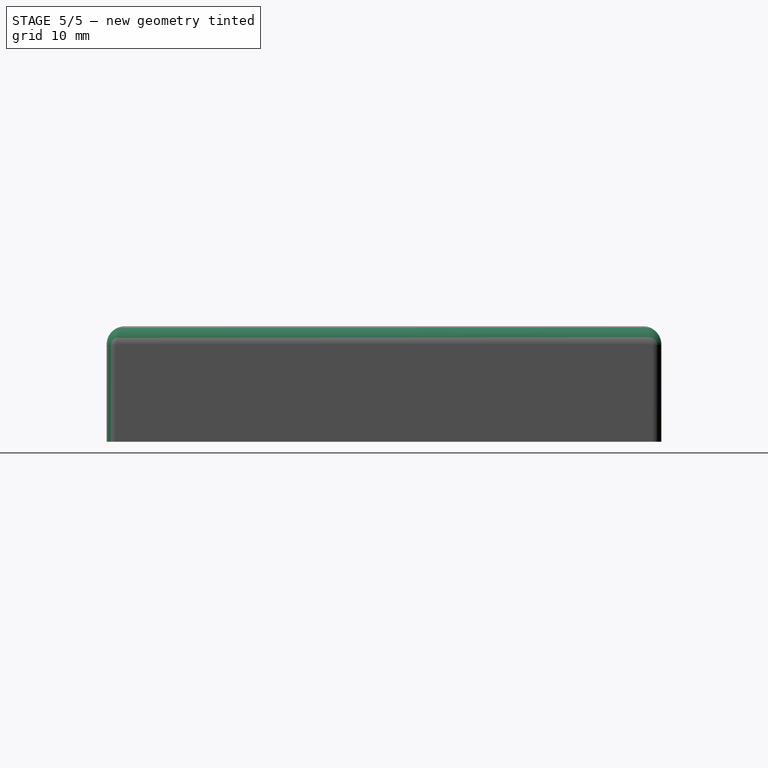
[diagram: stage 5 of 5 — right view after this stage's code; geometry added in this stage tinted green]
FEATURE [PartDesign::Mirrored] Mirrored006
  MirrorPlane = -> Sketch012 [V_Axis]
FEATURE [PartDesign::Mirrored] Mirrored007
  MirrorPlane = -> Sketch012 [H_Axis]
FEATURE [PartDesign::MultiTransform] MultiTransform003
  BaseFeature = -> Pocket005
  Originals = -> [Pocket005]
  Transformations = -> [Mirrored006,Mirrored007]
FEATURE [PartDesign::Fillet] Fillet006
  Base = -> MultiTransform003 [Edge24,Edge2,Edge64,Edge26,Edge30,Edge84,Edge4,Edge28]
  BaseFeature = -> MultiTransform003
  Radius = 1
  SupportTransform = false
  UseAllEdges = false
FEATURE [PartDesign::Fillet] Fillet007
  Base = -> Fillet006 [Edge80,Edge34,Edge81,Edge84]
  BaseFeature = -> Fillet006
  Radius = 2
  SupportTransform = false
  UseAllEdges = false
FEATURE [PartDesign::Chamfer] Chamfer
  Angle = 45
  Base = -> Fillet007 [Edge27,Edge29,Edge42,Edge28]
  BaseFeature = -> Fillet007
  ChamferType = 0
  FlipDirection = false
  Size = 1
  Size2 = 1
  SupportTransform = false
  UseAllEdges = false
FEATURE [PartDesign::Fillet] Fillet008
  Base = -> Chamfer [Edge141,Edge143,Edge142,Edge144]
  BaseFeature = -> Chamfer
  Radius = 1
  SupportTransform = false
  UseAllEdges = false
FEATURE [PartDesign::Chamfer] Chamfer001
  Angle = 45
  Base = -> Fillet008 [Edge119,Edge141,Edge139,Edge138,Edge135,Edge134,Edge132,Edge130,Edge128,Edge126,Edge123,Edge122]
  BaseFeature = -> Fillet008
  ChamferType = 0
  FlipDirection = false
  Size = 1
  Size2 = 1
  SupportTransform = false
  UseAllEdges = false
FEATURE [PartDesign::Body] Body002  label="Body_Lid"
  Group = -> [Binder001,Sketch008,Pad004,Sketch009,Pocket004,MultiTransform002,Mirrored004,Mirrored005,Sketch011,Pad005,Sketch012,Pocket005,MultiTransform003,Mirrored006,Mirrored007,Fillet006,Fillet007,Chamfer,Fillet008,Chamfer001]
  Origin = -> Origin002
  Placement = pos=(0,0,17.5) rot=(0,0,1;0rad)
  Tip = -> Chamfer001
  expr: .Placement.Base.z = <<Values>>.Z_Depth
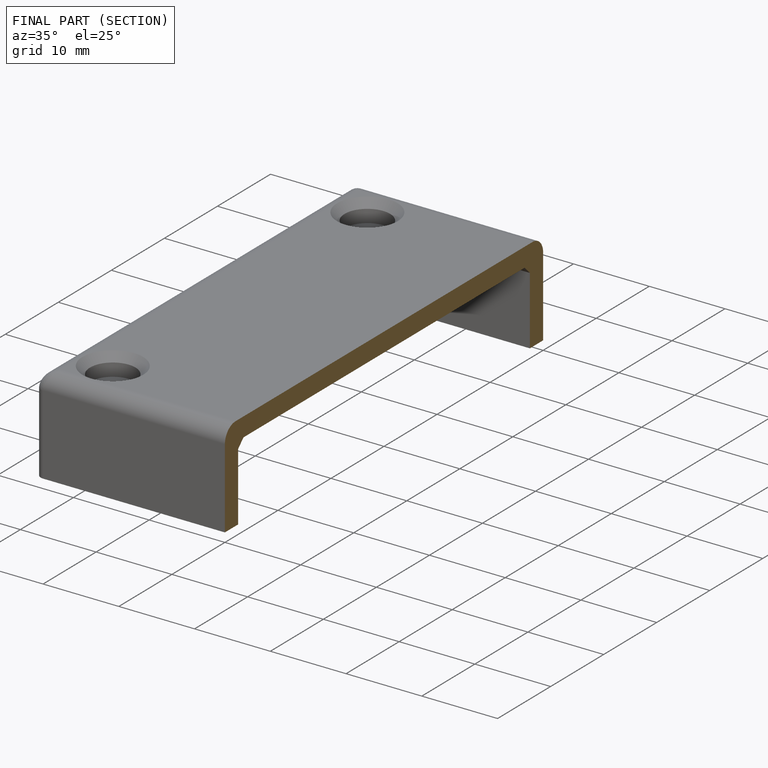
[diagram: finished part — half-section view (interior)]
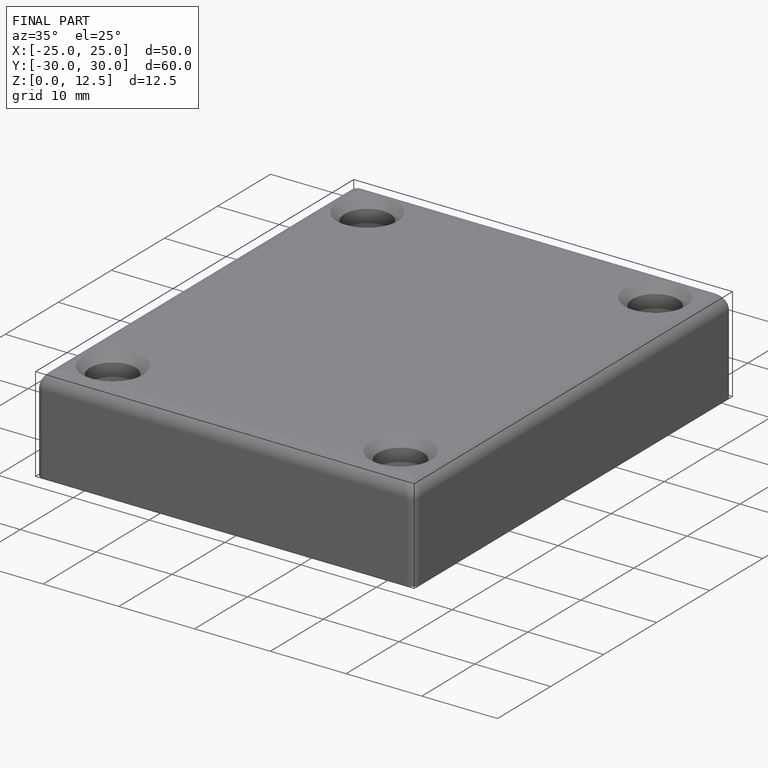
[diagram: finished part — iso view with bounding-box wireframe]
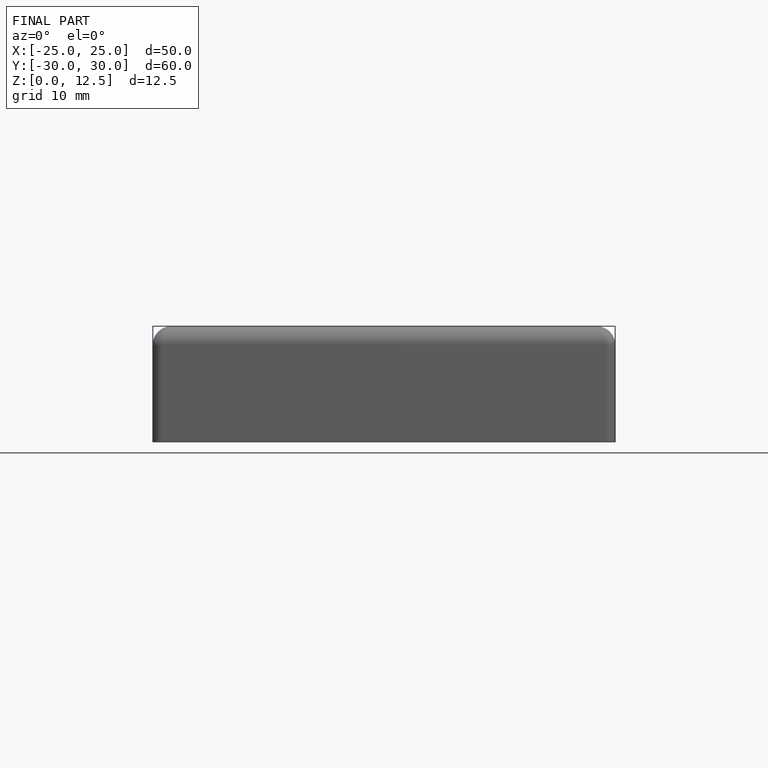
[diagram: finished part — front view with bounding-box wireframe]
